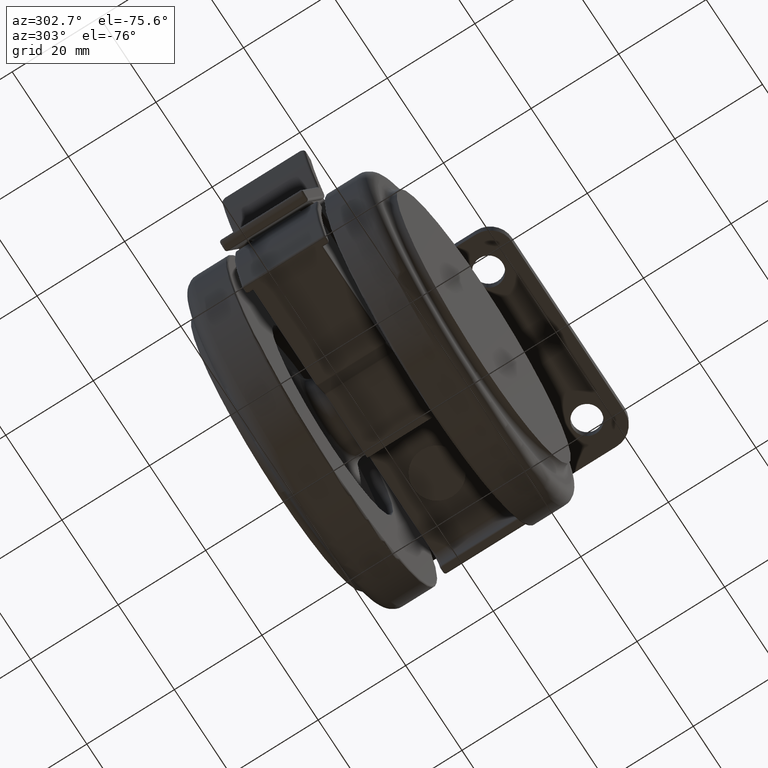
[diagram: clean part render]
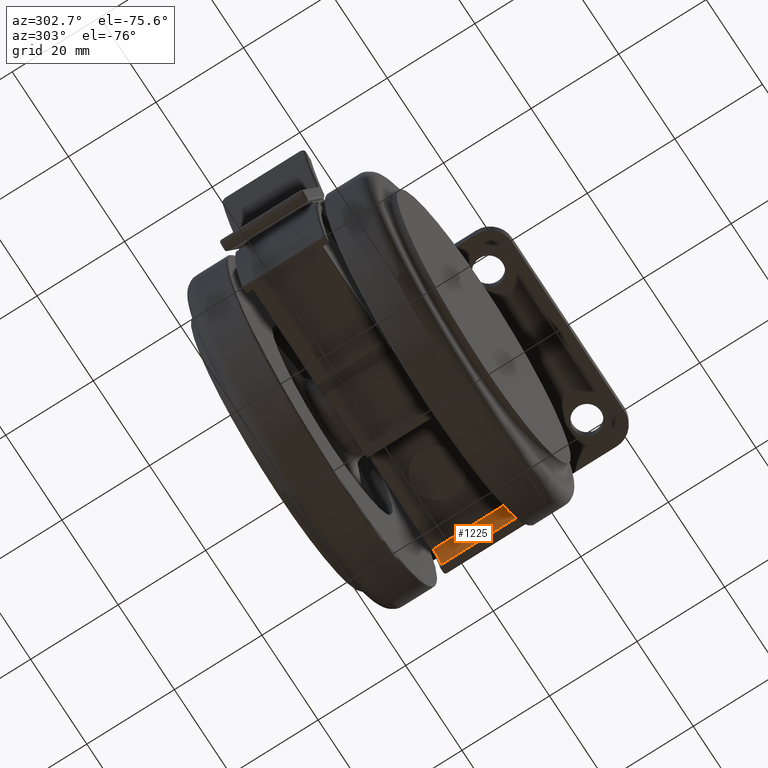
[diagram: same view with one face highlighted and labeled with its STEP entity id]
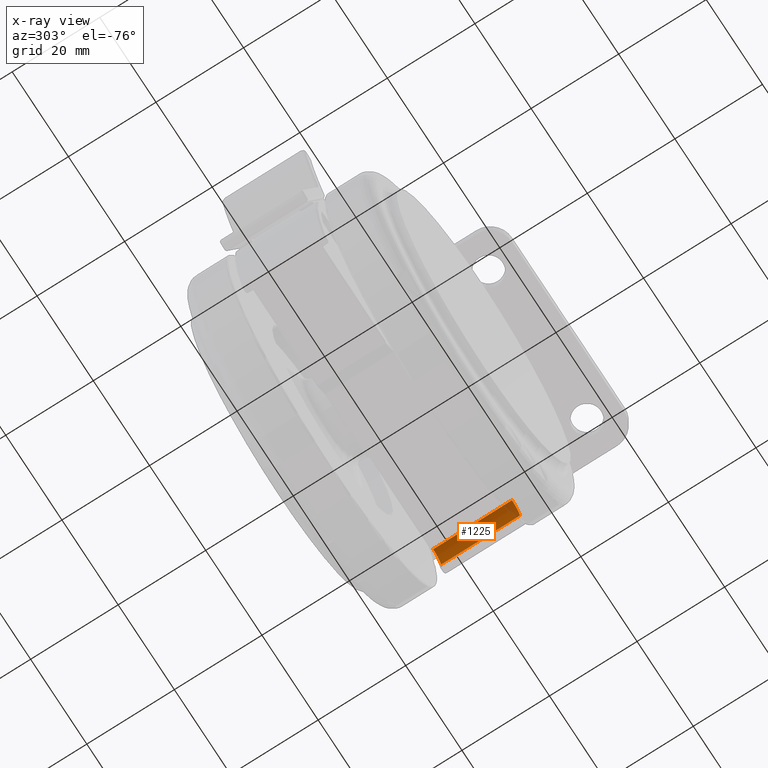
[diagram: x-ray of the same camera — body ghosted, the highlighted face saturated]
A machine part, auxiliary view. The second image highlights one B-rep face of the part: STEP entity #1225.
The next image is the same camera in x-ray: the body ghosted, the highlighted face saturated — about 8% of this face is hidden behind the body in this view.
In plain terms, the highlighted cylindrical surface (edge-blend (fillet) strip) has radius 2.8866 mm, axis along (0, -1, 0).
Its self-contained STEP definition (entity closure, byte-faithful):
#167 = CARTESIAN_POINT ( 'NONE',  ( 15.46826598731185100, 9.000000000000230900, -40.07382015056469300 ) ) ;
#416 = ORIENTED_EDGE ( 'NONE', *, *, #8703, .F. ) ;
#466 = DIRECTION ( 'NONE',  ( -0.0000000000000000000, 1.000000000000000000, -0.0000000000000000000 ) ) ;
#716 = EDGE_CURVE ( 'NONE', #7455, #5196, #3871, .T. ) ;
#1225 = ADVANCED_FACE ( 'NONE', ( #2432 ), #4080, .F. ) ;
#1228 = VECTOR ( 'NONE', #2107, 1000.000000000000000 ) ;
#1249 = VERTEX_POINT ( 'NONE', #5654 ) ;
#1448 = AXIS2_PLACEMENT_3D ( 'NONE', #8252, #4059, #8969 ) ;
#1756 = ORIENTED_EDGE ( 'NONE', *, *, #6450, .T. ) ;
#1820 = CARTESIAN_POINT ( 'NONE',  ( 12.61329079872270000, 9.000000000000230900, -37.61339081420334900 ) ) ;
#2107 = DIRECTION ( 'NONE',  ( 0.0000000000000000000, -1.000000000000000000, 0.0000000000000000000 ) ) ;
#2432 = FACE_OUTER_BOUND ( 'NONE', #5626, .T. ) ;
#2445 = AXIS2_PLACEMENT_3D ( 'NONE', #4687, #466, #5389 ) ;
#2885 = CARTESIAN_POINT ( 'NONE',  ( 15.46826598731185100, 990.5000000000000000, -40.07382015056469300 ) ) ;
#3003 = CIRCLE ( 'NONE', #2445, 2.886609185796432000 ) ;
#3871 = LINE ( 'NONE', #2885, #7593 ) ;
#4059 = DIRECTION ( 'NONE',  ( -0.0000000000000000000, -1.000000000000000000, -0.0000000000000000000 ) ) ;
#4080 = CYLINDRICAL_SURFACE ( 'NONE', #8686, 2.886609185796432000 ) ;
#4220 = CARTESIAN_POINT ( 'NONE',  ( 12.61329079872270000, 990.5000000000000000, -37.61339081420334900 ) ) ;
#4687 = CARTESIAN_POINT ( 'NONE',  ( 12.61329079872270000, 9.000000000000230900, -40.50000000000000000 ) ) ;
#5196 = VERTEX_POINT ( 'NONE', #6104 ) ;
#5389 = DIRECTION ( 'NONE',  ( 0.0000000000000000000, 0.0000000000000000000, -1.000000000000000000 ) ) ;
#5600 = DIRECTION ( 'NONE',  ( 0.0000000000000000000, 0.0000000000000000000, -1.000000000000000000 ) ) ;
#5626 = EDGE_LOOP ( 'NONE', ( #416, #1756, #7048, #7221 ) ) ;
#5654 = CARTESIAN_POINT ( 'NONE',  ( 12.61329079872270000, -8.999999999999788600, -37.61339081420334900 ) ) ;
#6104 = CARTESIAN_POINT ( 'NONE',  ( 15.46826598731185100, -8.999999999999788600, -40.07382015056469300 ) ) ;
#6450 = EDGE_CURVE ( 'NONE', #7670, #7455, #3003, .T. ) ;
#7048 = ORIENTED_EDGE ( 'NONE', *, *, #716, .T. ) ;
#7083 = DIRECTION ( 'NONE',  ( 0.0000000000000000000, -1.000000000000000000, 0.0000000000000000000 ) ) ;
#7110 = EDGE_CURVE ( 'NONE', #5196, #1249, #7939, .T. ) ;
#7221 = ORIENTED_EDGE ( 'NONE', *, *, #7110, .T. ) ;
#7455 = VERTEX_POINT ( 'NONE', #167 ) ;
#7593 = VECTOR ( 'NONE', #7083, 1000.000000000000000 ) ;
#7670 = VERTEX_POINT ( 'NONE', #1820 ) ;
#7749 = DIRECTION ( 'NONE',  ( 0.0000000000000000000, -1.000000000000000000, 0.0000000000000000000 ) ) ;
#7939 = CIRCLE ( 'NONE', #1448, 2.886609185796432000 ) ;
#8031 = LINE ( 'NONE', #4220, #1228 ) ;
#8252 = CARTESIAN_POINT ( 'NONE',  ( 12.61329079872270000, -8.999999999999788600, -40.50000000000000000 ) ) ;
#8686 = AXIS2_PLACEMENT_3D ( 'NONE', #9115, #7749, #5600 ) ;
#8703 = EDGE_CURVE ( 'NONE', #7670, #1249, #8031, .T. ) ;
#8969 = DIRECTION ( 'NONE',  ( 1.802866301935695000E-015, 0.0000000000000000000, 1.000000000000000000 ) ) ;
#9115 = CARTESIAN_POINT ( 'NONE',  ( 12.61329079872270000, 990.5000000000000000, -40.50000000000000000 ) ) ;